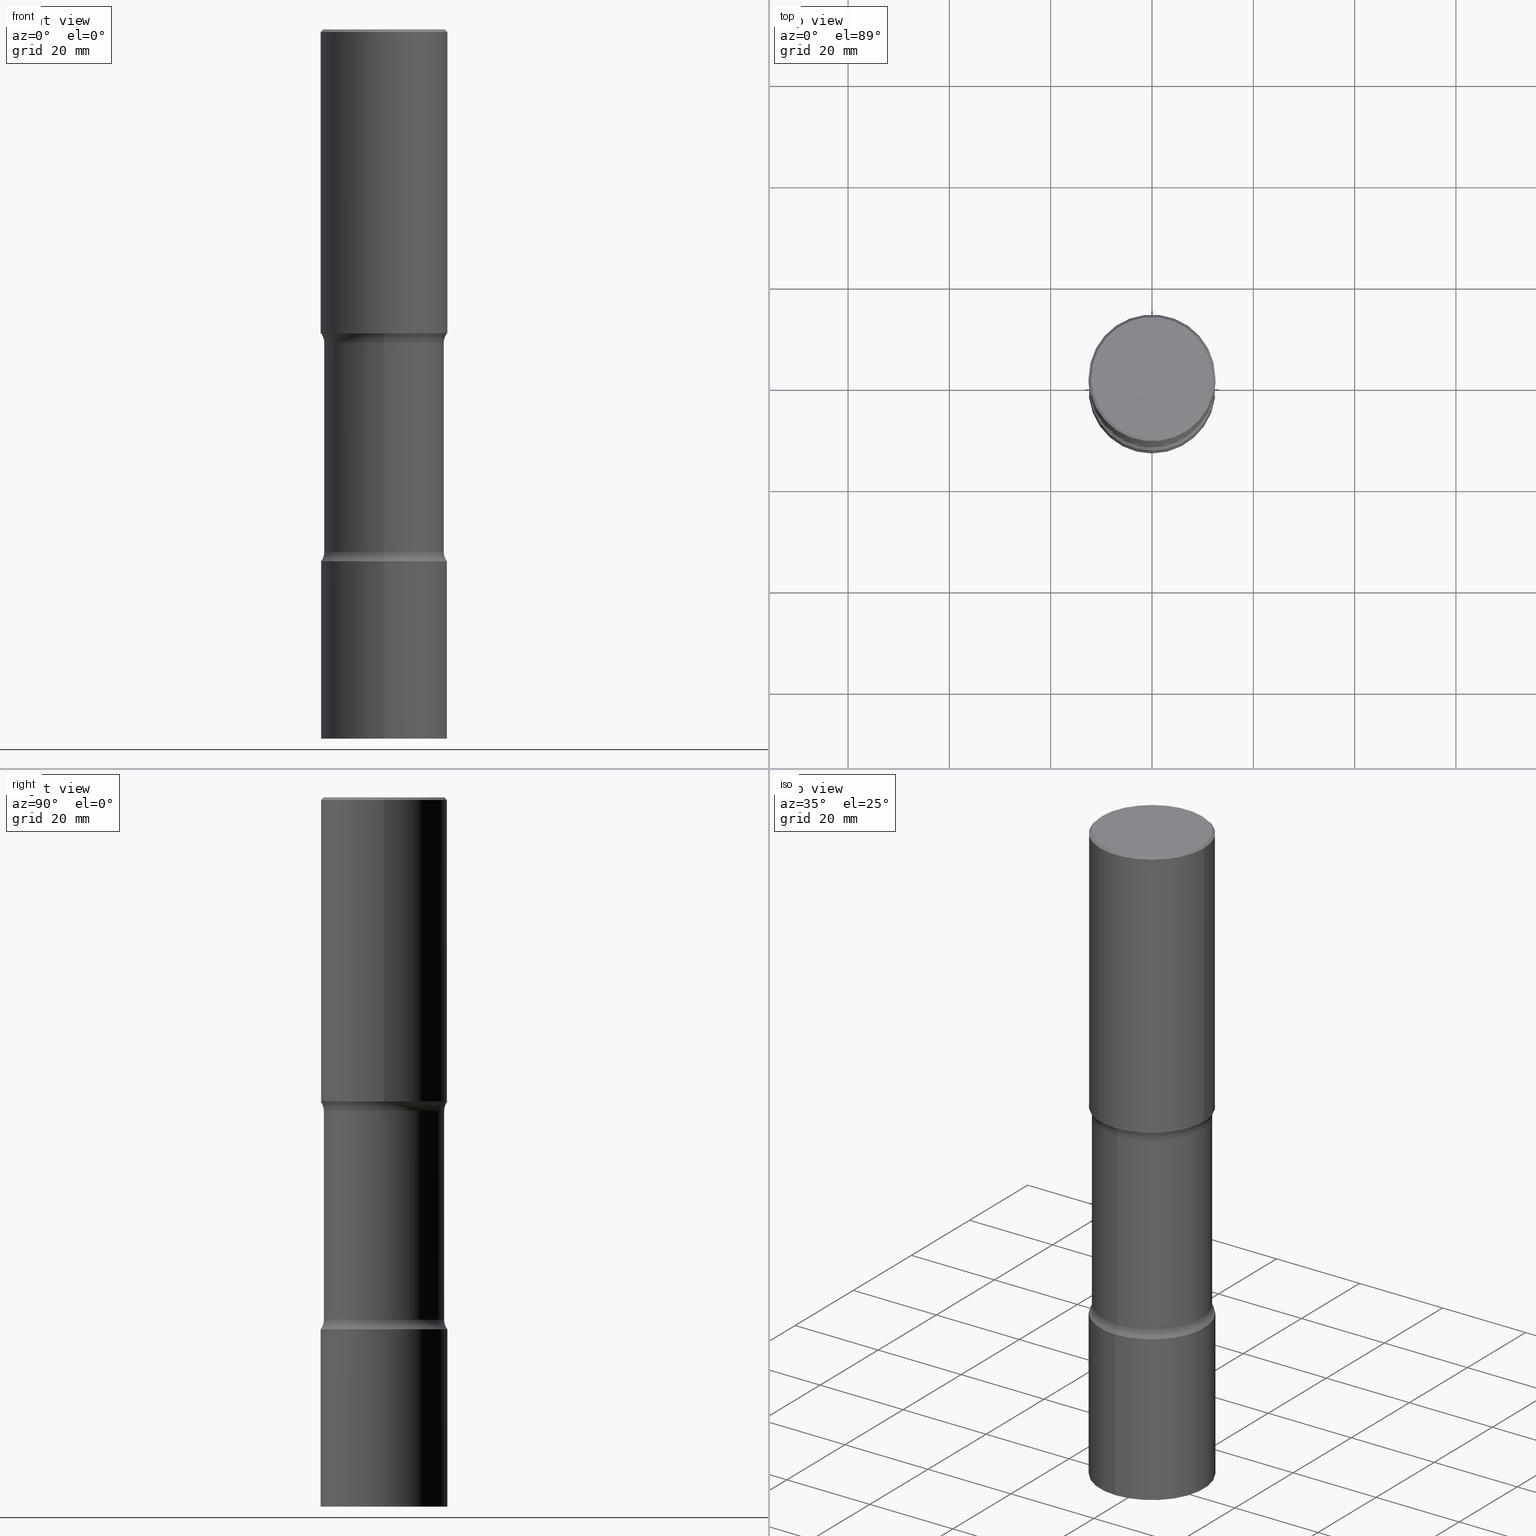
[diagram: canonical four-view strip — front | top / right | iso, engineering-drawing reading convention]
A machine part, canonical four-view strip (front | top / right | iso — engineering-drawing reading convention). The complete STEP part file that produces these views, byte-faithful:
ISO-10303-21;
HEADER;
FILE_DESCRIPTION (( 'STEP AP203' ),
    '1' );
FILE_NAME ('44654.STEP',
    '2024-03-11T13:41:08',
    ( '' ),
    ( '' ),
    'SwSTEP 2.0',
    'SolidWorks 2023',
    '' );
FILE_SCHEMA (( 'CONFIG_CONTROL_DESIGN' ));
ENDSEC;

DATA;
#1 = CONICAL_SURFACE ( 'NONE', #124, 0.4921499999999996988, 0.7853981633974460586 ) ;
#2 = AXIS2_PLACEMENT_3D ( 'NONE', #199, #476, #196 ) ;
#3 = ADVANCED_BREP_SHAPE_REPRESENTATION ( '44654', ( #409, #411, #244, #417 ), #441 ) ;
#4 = LINE ( 'NONE', #120, #350 ) ;
#5 = ADVANCED_FACE ( 'NONE', ( #487 ), #1, .T. ) ;
#6 = DIRECTION ( 'NONE',  ( 2.550468296811760761E-29, -3.341116092065950250E-15, -1.000000000000000000 ) ) ;
#7 = ORIENTED_EDGE ( 'NONE', *, *, #494, .T. ) ;
#8 = CARTESIAN_POINT ( 'NONE',  ( 5.768185847438264700E-29, -8.780985790233064906E-15, -2.436731050576252056 ) ) ;
#9 = EDGE_LOOP ( 'NONE', ( #130, #55 ) ) ;
#10 = CIRCLE ( 'NONE', #260, 0.4921499999999999209 ) ;
#11 = CC_DESIGN_APPROVAL ( #12, ( #466 ) ) ;
#12 = APPROVAL ( #183, 'UNSPECIFIED' ) ;
#13 = CARTESIAN_POINT ( 'NONE',  ( 1.010907895100811684E-28, -1.443308555850979562E-14, -4.133799999999999919 ) ) ;
#14 = ORIENTED_EDGE ( 'NONE', *, *, #32, .T. ) ;
#15 = EDGE_CURVE ( 'NONE', #432, #172, #110, .T. ) ;
#16 = FACE_OUTER_BOUND ( 'NONE', #57, .T. ) ;
#17 = ORIENTED_EDGE ( 'NONE', *, *, #208, .F. ) ;
#18 = DIRECTION ( 'NONE',  ( -2.438088387897960049E-29, 3.491481338843145188E-15, 1.000000000000000000 ) ) ;
#19 = ORIENTED_EDGE ( 'NONE', *, *, #352, .F. ) ;
#20 = DIRECTION ( 'NONE',  ( 6.982962677686265922E-15, 1.000000000000000000, -3.330506545156065468E-15 ) ) ;
#21 = CIRCLE ( 'NONE', #300, 0.1249999999999995559 ) ;
#22 = ORIENTED_EDGE ( 'NONE', *, *, #382, .T. ) ;
#23 = ORIENTED_EDGE ( 'NONE', *, *, #118, .F. ) ;
#24 = DIRECTION ( 'NONE',  ( -2.445706778904536167E-29, 3.491140548364399135E-15, 1.000000000000000000 ) ) ;
#25 = ORIENTED_EDGE ( 'NONE', *, *, #74, .T. ) ;
#26 = EDGE_CURVE ( 'NONE', #439, #359, #292, .T. ) ;
#27 = CARTESIAN_POINT ( 'NONE',  ( 1.011006268263557140E-28, -1.443167679882875537E-14, -4.133799999999999919 ) ) ;
#28 = DIRECTION ( 'NONE',  ( 1.000000000000000000, -6.982962677686265922E-15, 0.000000000000000000 ) ) ;
#29 = VECTOR ( 'NONE', #425, 39.37007874015748143 ) ;
#30 = AXIS2_PLACEMENT_3D ( 'NONE', #143, #323, #20 ) ;
#31 = ADVANCED_FACE ( 'NONE', ( #336 ), #474, .F. ) ;
#32 = EDGE_CURVE ( 'NONE', #132, #207, #21, .T. ) ;
#33 = COORDINATED_UNIVERSAL_TIME_OFFSET ( 5, 0, .BEHIND. ) ;
#34 = DIRECTION ( 'NONE',  ( 6.982962677686265133E-15, 1.000000000000000000, -3.341116092065950250E-15 ) ) ;
#35 = APPROVAL_DATE_TIME ( #457, #275 ) ;
#36 = FACE_OUTER_BOUND ( 'NONE', #288, .T. ) ;
#37 = ADVANCED_FACE ( 'NONE', ( #286 ), #282, .T. ) ;
#38 = PERSON_AND_ORGANIZATION_ROLE ( 'creator' ) ;
#39 = DIRECTION ( 'NONE',  ( 2.550468296811760761E-29, -3.341116092065950250E-15, -1.000000000000000000 ) ) ;
#40 = CIRCLE ( 'NONE', #177, 0.4921499999999999209 ) ;
#41 = AXIS2_PLACEMENT_3D ( 'NONE', #390, #274, #48 ) ;
#42 = AXIS2_PLACEMENT_3D ( 'NONE', #364, #18, #245 ) ;
#43 = APPLICATION_PROTOCOL_DEFINITION ( 'international standard', 'config_control_design', 1994, #264 ) ;
#44 = FACE_OUTER_BOUND ( 'NONE', #372, .T. ) ;
#45 = PLANE ( 'NONE',  #376 ) ;
#46 = AXIS2_PLACEMENT_3D ( 'NONE', #8, #203, #272 ) ;
#47 = AXIS2_PLACEMENT_3D ( 'NONE', #279, #242, #440 ) ;
#48 = DIRECTION ( 'NONE',  ( 1.000000000000000000, -6.982962677686265922E-15, 4.876006802227162976E-29 ) ) ;
#49 = VERTEX_POINT ( 'NONE', #137 ) ;
#50 = FACE_OUTER_BOUND ( 'NONE', #157, .T. ) ;
#51 = CARTESIAN_POINT ( 'NONE',  ( -3.131554243005659264E-46, 4.471029511141341874E-32, 1.280553747030123384E-17 ) ) ;
#52 = ORIENTED_EDGE ( 'NONE', *, *, #443, .T. ) ;
#53 = ORGANIZATION ( 'UNSPECIFIED', 'UNSPECIFIED', '' ) ;
#54 = DIRECTION ( 'NONE',  ( 2.550468296811760200E-29, -3.341116092065950250E-15, -1.000000000000000000 ) ) ;
#55 = ORIENTED_EDGE ( 'NONE', *, *, #315, .T. ) ;
#56 = DIRECTION ( 'NONE',  ( 6.982962677686265922E-15, 1.000000000000000000, -3.330506545156066652E-15 ) ) ;
#57 = EDGE_LOOP ( 'NONE', ( #139, #316, #101, #297 ) ) ;
#58 = ADVANCED_FACE ( 'NONE', ( #428 ), #499, .T. ) ;
#59 = DIRECTION ( 'NONE',  ( 2.438088387897960049E-29, -3.491481338843145188E-15, -1.000000000000000000 ) ) ;
#60 = EDGE_LOOP ( 'NONE', ( #447, #52 ) ) ;
#61 = CARTESIAN_POINT ( 'NONE',  ( 1.362460799564217853E-28, -1.903573477369563005E-14, -5.511800000000000033 ) ) ;
#62 = AXIS2_PLACEMENT_3D ( 'NONE', #116, #151, #343 ) ;
#63 = CIRCLE ( 'NONE', #103, 0.1249999999999999584 ) ;
#64 = VERTEX_POINT ( 'NONE', #504 ) ;
#65 = DIRECTION ( 'NONE',  ( -6.982962677686265922E-15, -1.000000000000000000, 4.440675393541422465E-15 ) ) ;
#66 = DIRECTION ( 'NONE',  ( 6.982962677686265133E-15, 1.000000000000000000, -2.337410048054982819E-15 ) ) ;
#67 = EDGE_CURVE ( 'NONE', #64, #481, #508, .T. ) ;
#68 = DIRECTION ( 'NONE',  ( 2.445468806185136597E-29, -3.491481338843145583E-15, -1.000000000000000000 ) ) ;
#69 = APPROVAL_ROLE ( '' ) ;
#70 = ORIENTED_EDGE ( 'NONE', *, *, #494, .F. ) ;
#71 = AXIS2_PLACEMENT_3D ( 'NONE', #246, #404, #211 ) ;
#72 = AXIS2_PLACEMENT_3D ( 'NONE', #349, #318, #201 ) ;
#73 = DIRECTION ( 'NONE',  ( -2.445706778904536167E-29, 3.491140548364399135E-15, 1.000000000000000000 ) ) ;
#74 = EDGE_CURVE ( 'NONE', #172, #432, #40, .T. ) ;
#75 = PERSON_AND_ORGANIZATION_ROLE ( 'design_owner' ) ;
#76 = CARTESIAN_POINT ( 'NONE',  ( 1.348024662396602390E-28, -1.924246847447489311E-14, -5.511800000000000033 ) ) ;
#77 = CALENDAR_DATE ( 2024, 11, 3 ) ;
#78 = ADVANCED_FACE ( 'NONE', ( #184 ), #384, .T. ) ;
#79 = CARTESIAN_POINT ( 'NONE',  ( 1.011006268263557140E-28, -1.443167679882875537E-14, -4.133799999999999919 ) ) ;
#80 = AXIS2_PLACEMENT_3D ( 'NONE', #270, #83, #500 ) ;
#81 = CIRCLE ( 'NONE', #302, 0.4675000000000004707 ) ;
#82 = COORDINATED_UNIVERSAL_TIME_OFFSET ( 5, 0, .BEHIND. ) ;
#83 = DIRECTION ( 'NONE',  ( 2.550468296811760761E-29, -3.341116092065950250E-15, -1.000000000000000000 ) ) ;
#84 = DIMENSIONAL_EXPONENTS ( 1.000000000000000000, 0.000000000000000000, 0.000000000000000000, 0.000000000000000000, 0.000000000000000000, 0.000000000000000000, 0.000000000000000000 ) ;
#85 = FACE_OUTER_BOUND ( 'NONE', #406, .T. ) ;
#86 = CARTESIAN_POINT ( 'NONE',  ( 9.919973601012768158E-29, -1.418265990638985854E-14, -4.059268949423747941 ) ) ;
#87 = EDGE_LOOP ( 'NONE', ( #361, #249, #22, #253 ) ) ;
#88 = AXIS2_PLACEMENT_3D ( 'NONE', #434, #126, #140 ) ;
#89 = CARTESIAN_POINT ( 'NONE',  ( 5.781742129626663018E-29, -8.761572422563614587E-15, -2.436731050576252500 ) ) ;
#90 = ORIENTED_EDGE ( 'NONE', *, *, #379, .T. ) ;
#91 = DIRECTION ( 'NONE',  ( -6.982962677686265922E-15, -1.000000000000000000, 3.491140548364399135E-15 ) ) ;
#92 = ORIENTED_EDGE ( 'NONE', *, *, #305, .F. ) ;
#93 = PLANE ( 'NONE',  #262 ) ;
#94 = ORIENTED_EDGE ( 'NONE', *, *, #167, .F. ) ;
#95 = VECTOR ( 'NONE', #429, 39.37007874015748143 ) ;
#96 = CIRCLE ( 'NONE', #47, 0.4921499999999999764 ) ;
#97 = CYLINDRICAL_SURFACE ( 'NONE', #2, 0.4921499999999999209 ) ;
#98 = EDGE_LOOP ( 'NONE', ( #169, #19 ) ) ;
#99 = EDGE_LOOP ( 'NONE', ( #127, #478, #204, #104 ) ) ;
#100 = DIRECTION ( 'NONE',  ( -0.7071067811865459074, 2.468850131082240100E-15, -0.7071067811865491270 ) ) ;
#101 = ORIENTED_EDGE ( 'NONE', *, *, #239, .F. ) ;
#102 = CIRCLE ( 'NONE', #41, 0.4721499999999996255 ) ;
#103 = AXIS2_PLACEMENT_3D ( 'NONE', #486, #287, #210 ) ;
#104 = ORIENTED_EDGE ( 'NONE', *, *, #67, .F. ) ;
#105 = LINE ( 'NONE', #444, #427 ) ;
#106 = EDGE_LOOP ( 'NONE', ( #23, #200, #121, #144 ) ) ;
#107 = CARTESIAN_POINT ( 'NONE',  ( 5.768185847438264700E-29, -8.780985790233064906E-15, -2.436731050576252056 ) ) ;
#108 = COORDINATED_UNIVERSAL_TIME_OFFSET ( 5, 0, .BEHIND. ) ;
#109 = CARTESIAN_POINT ( 'NONE',  ( 5.591653048003855297E-29, -8.512555530124713029E-15, -2.362199999999999189 ) ) ;
#110 = CIRCLE ( 'NONE', #492, 0.4921499999999999209 ) ;
#111 = CIRCLE ( 'NONE', #252, 0.4921499999999996988 ) ;
#112 = CALENDAR_DATE ( 2024, 11, 3 ) ;
#113 = DIRECTION ( 'NONE',  ( 6.982962677686265922E-15, 1.000000000000000000, -3.491140548364399135E-15 ) ) ;
#114 = PERSON_AND_ORGANIZATION_ROLE ( 'design_supplier' ) ;
#115 = CARTESIAN_POINT ( 'NONE',  ( 5.776686413970527511E-29, -8.247577218615276471E-15, -2.362199999999999189 ) ) ;
#116 = CARTESIAN_POINT ( 'NONE',  ( -4.064845063679575306E-15, -0.5925000000000090195, -2.436731050576250279 ) ) ;
#117 = CIRCLE ( 'NONE', #72, 0.4675000000000001932 ) ;
#118 = EDGE_CURVE ( 'NONE', #402, #207, #187, .T. ) ;
#119 = DIRECTION ( 'NONE',  ( 1.000000000000000000, -6.982962677686263555E-15, 0.000000000000000000 ) ) ;
#120 = CARTESIAN_POINT ( 'NONE',  ( 0.4921499999999998098, -3.436665081823294593E-15, 2.399810400207968762E-29 ) ) ;
#121 = ORIENTED_EDGE ( 'NONE', *, *, #67, .T. ) ;
#122 = CARTESIAN_POINT ( 'NONE',  ( 0.4921499999999996988, -3.446223716380120377E-15, -0.02000000000000013572 ) ) ;
#123 = VERTEX_POINT ( 'NONE', #462 ) ;
#124 = AXIS2_PLACEMENT_3D ( 'NONE', #333, #68, #290 ) ;
#125 = APPROVAL_PERSON_ORGANIZATION ( #380, #192, #463 ) ;
#126 = DIRECTION ( 'NONE',  ( -1.000000000000000000, 6.982962677686265922E-15, -4.883557194083112901E-29 ) ) ;
#127 = ORIENTED_EDGE ( 'NONE', *, *, #305, .T. ) ;
#128 = EDGE_CURVE ( 'NONE', #159, #439, #145, .T. ) ;
#129 = CARTESIAN_POINT ( 'NONE',  ( 1.362460799564217853E-28, -1.903573477369563005E-14, -5.511800000000000033 ) ) ;
#130 = ORIENTED_EDGE ( 'NONE', *, *, #231, .T. ) ;
#131 = CARTESIAN_POINT ( 'NONE',  ( 5.776686413970527511E-29, -8.247577218615276471E-15, -2.362199999999999189 ) ) ;
#132 = VERTEX_POINT ( 'NONE', #299 ) ;
#133 = VECTOR ( 'NONE', #465, 39.37007874015748143 ) ;
#134 = AXIS2_PLACEMENT_3D ( 'NONE', #175, #453, #496 ) ;
#135 = VERTEX_POINT ( 'NONE', #458 ) ;
#136 = FACE_OUTER_BOUND ( 'NONE', #489, .T. ) ;
#137 = CARTESIAN_POINT ( 'NONE',  ( -3.436665081823194408E-15, -0.4921500000000142983, -4.133799999999998143 ) ) ;
#138 = CARTESIAN_POINT ( 'NONE',  ( -0.4921499999999996988, 3.366835455046430506E-15, -0.02000000000000013572 ) ) ;
#139 = ORIENTED_EDGE ( 'NONE', *, *, #155, .T. ) ;
#140 = DIRECTION ( 'NONE',  ( -6.982962677686268288E-15, -1.000000000000000000, 0.000000000000000000 ) ) ;
#141 = CIRCLE ( 'NONE', #228, 0.4921499999999999209 ) ;
#142 = ORIENTED_EDGE ( 'NONE', *, *, #161, .T. ) ;
#143 = CARTESIAN_POINT ( 'NONE',  ( 5.591653048003855297E-29, -8.512555530124713029E-15, -2.362199999999999189 ) ) ;
#144 = ORIENTED_EDGE ( 'NONE', *, *, #247, .F. ) ;
#145 = LINE ( 'NONE', #153, #133 ) ;
#146 = LINE ( 'NONE', #149, #29 ) ;
#147 = AXIS2_PLACEMENT_3D ( 'NONE', #355, #360, #91 ) ;
#148 = PERSON_AND_ORGANIZATION ( #322, #53 ) ;
#149 = CARTESIAN_POINT ( 'NONE',  ( -3.436665081823295382E-15, -0.4921499999999999209, 1.718164820877538749E-15 ) ) ;
#150 = PERSON_AND_ORGANIZATION ( #322, #53 ) ;
#151 = DIRECTION ( 'NONE',  ( 1.000000000000000000, -6.860497997771530774E-15, 4.842640322805829987E-29 ) ) ;
#152 = EDGE_CURVE ( 'NONE', #123, #209, #205, .T. ) ;
#153 = CARTESIAN_POINT ( 'NONE',  ( -0.4921499999999998098, 3.496936074043331714E-15, -2.420853904668950949E-29 ) ) ;
#154 = DIRECTION ( 'NONE',  ( -2.445468806185136597E-29, 3.491481338843145583E-15, 1.000000000000000000 ) ) ;
#155 = EDGE_CURVE ( 'NONE', #454, #159, #276, .T. ) ;
#156 = DIRECTION ( 'NONE',  ( 6.982962677686265133E-15, 1.000000000000000000, -3.506115072082473243E-15 ) ) ;
#157 = EDGE_LOOP ( 'NONE', ( #329, #370 ) ) ;
#158 = DIRECTION ( 'NONE',  ( 2.550468296811760761E-29, -3.341116092065950250E-15, -1.000000000000000000 ) ) ;
#159 = VERTEX_POINT ( 'NONE', #468 ) ;
#160 = CLOSED_SHELL ( 'NONE', ( #293, #5, #37, #452, #479, #58 ) ) ;
#161 = EDGE_CURVE ( 'NONE', #402, #209, #450, .T. ) ;
#162 = LOCAL_TIME ( 9, 41, 8.000000000000000000, #82 ) ;
#163 = DIRECTION ( 'NONE',  ( 2.445706778904535887E-29, -3.491140548364399135E-15, -1.000000000000000000 ) ) ;
#164 = ORIENTED_EDGE ( 'NONE', *, *, #208, .T. ) ;
#165 = DIRECTION ( 'NONE',  ( 6.982962677686265922E-15, 1.000000000000000000, -3.491140548364399135E-15 ) ) ;
#166 = ORIENTED_EDGE ( 'NONE', *, *, #472, .F. ) ;
#167 = EDGE_CURVE ( 'NONE', #49, #354, #10, .T. ) ;
#168 =( NAMED_UNIT ( * ) SI_UNIT ( $, .STERADIAN. ) SOLID_ANGLE_UNIT ( ) );
#169 = ORIENTED_EDGE ( 'NONE', *, *, #155, .F. ) ;
#170 = AXIS2_PLACEMENT_3D ( 'NONE', #491, #374, #28 ) ;
#171 = CIRCLE ( 'NONE', #88, 0.1249999999999995559 ) ;
#172 = VERTEX_POINT ( 'NONE', #339 ) ;
#173 = DIRECTION ( 'NONE',  ( -1.000000000000000000, 6.982962677686265922E-15, -4.876176775795935793E-29 ) ) ;
#174 = EDGE_LOOP ( 'NONE', ( #295, #363, #437, #312 ) ) ;
#175 = CARTESIAN_POINT ( 'NONE',  ( 1.010907895100811684E-28, -1.443308555850979562E-14, -4.133799999999999919 ) ) ;
#176 = EDGE_LOOP ( 'NONE', ( #233, #238 ) ) ;
#177 = AXIS2_PLACEMENT_3D ( 'NONE', #76, #73, #461 ) ;
#178 = CC_DESIGN_APPROVAL ( #275, ( #368 ) ) ;
#179 = ORIENTED_EDGE ( 'NONE', *, *, #285, .T. ) ;
#180 = DATE_TIME_ROLE ( 'classification_date' ) ;
#181 = CARTESIAN_POINT ( 'NONE',  ( -3.207282813958056946E-15, -0.4675000000000194000, -5.511799999999999145 ) ) ;
#182 = CC_DESIGN_PERSON_AND_ORGANIZATION_ASSIGNMENT ( #148, #341, ( #466 ) ) ;
#183 = APPROVAL_STATUS ( 'not_yet_approved' ) ;
#184 = FACE_OUTER_BOUND ( 'NONE', #176, .T. ) ;
#185 = CC_DESIGN_PERSON_AND_ORGANIZATION_ASSIGNMENT ( #385, #38, ( #368 ) ) ;
#186 = PERSON_AND_ORGANIZATION ( #322, #53 ) ;
#187 = LINE ( 'NONE', #181, #348 ) ;
#188 = AXIS2_PLACEMENT_3D ( 'NONE', #337, #506, #113 ) ;
#189 = ADVANCED_FACE ( 'NONE', ( #44 ), #483, .F. ) ;
#190 = LOCAL_TIME ( 9, 41, 8.000000000000000000, #108 ) ;
#191 = DATE_TIME_ROLE ( 'creation_date' ) ;
#192 = APPROVAL ( #301, 'UNSPECIFIED' ) ;
#193 = ADVANCED_FACE ( 'NONE', ( #36 ), #250, .F. ) ;
#194 = CALENDAR_DATE ( 2024, 11, 3 ) ;
#195 = CARTESIAN_POINT ( 'NONE',  ( -3.376394089603203436E-15, -0.4921500000000086916, -2.362199999999997413 ) ) ;
#196 = DIRECTION ( 'NONE',  ( -6.982962677686265922E-15, -1.000000000000000000, 3.491140548364399135E-15 ) ) ;
#197 = CC_DESIGN_PERSON_AND_ORGANIZATION_ASSIGNMENT ( #421, #505, ( #367 ) ) ;
#198 = EDGE_CURVE ( 'NONE', #172, #49, #146, .T. ) ;
#199 = CARTESIAN_POINT ( 'NONE',  ( 0.000000000000000000, 0.000000000000000000, 0.000000000000000000 ) ) ;
#200 = ORIENTED_EDGE ( 'NONE', *, *, #328, .T. ) ;
#201 = DIRECTION ( 'NONE',  ( 6.982962677686265133E-15, 1.000000000000000000, -3.506115072082475215E-15 ) ) ;
#202 = ORIENTED_EDGE ( 'NONE', *, *, #161, .F. ) ;
#203 = DIRECTION ( 'NONE',  ( 2.550468296811760761E-29, -3.341116092065950250E-15, -1.000000000000000000 ) ) ;
#204 = ORIENTED_EDGE ( 'NONE', *, *, #285, .F. ) ;
#205 = CIRCLE ( 'NONE', #475, 0.4921500000000000874 ) ;
#206 = DIRECTION ( 'NONE',  ( 2.550468296811760761E-29, -3.341116092065950250E-15, -1.000000000000000000 ) ) ;
#207 = VERTEX_POINT ( 'NONE', #345 ) ;
#208 = EDGE_CURVE ( 'NONE', #319, #132, #314, .T. ) ;
#209 = VERTEX_POINT ( 'NONE', #195 ) ;
#210 = DIRECTION ( 'NONE',  ( -6.982962677686269077E-15, -1.000000000000000000, 0.000000000000000000 ) ) ;
#211 = DIRECTION ( 'NONE',  ( -1.000000000000000000, 6.982962677686265922E-15, 0.000000000000000000 ) ) ;
#212 = AXIS2_PLACEMENT_3D ( 'NONE', #413, #248, #56 ) ;
#213 = PLANE ( 'NONE',  #134 ) ;
#214 = ORIENTED_EDGE ( 'NONE', *, *, #431, .T. ) ;
#215 = PLANE ( 'NONE',  #42 ) ;
#216 = ORIENTED_EDGE ( 'NONE', *, *, #32, .F. ) ;
#217 = EDGE_CURVE ( 'NONE', #135, #359, #347, .T. ) ;
#218 = DIRECTION ( 'NONE',  ( -2.445706778904536167E-29, 3.491140548364399135E-15, 1.000000000000000000 ) ) ;
#219 = DIRECTION ( 'NONE',  ( -2.445706778904536167E-29, 3.491140548364399135E-15, 1.000000000000000000 ) ) ;
#220 = CLOSED_SHELL ( 'NONE', ( #356, #255, #324, #78 ) ) ;
#221 = AXIS2_PLACEMENT_3D ( 'NONE', #51, #471, #480 ) ;
#222 = ORIENTED_EDGE ( 'NONE', *, *, #15, .T. ) ;
#223 = CARTESIAN_POINT ( 'NONE',  ( 1.011006268263557140E-28, -1.443167679882875537E-14, -4.133799999999999919 ) ) ;
#224 = ADVANCED_FACE ( 'NONE', ( #85 ), #426, .F. ) ;
#225 = CARTESIAN_POINT ( 'NONE',  ( 3.264535051818467659E-15, 0.4674999999999812639, -5.511800000000000921 ) ) ;
#226 = PERSON_AND_ORGANIZATION ( #322, #53 ) ;
#227 = DIRECTION ( 'NONE',  ( 2.550468296811760761E-29, -3.341116092065950250E-15, -1.000000000000000000 ) ) ;
#228 = AXIS2_PLACEMENT_3D ( 'NONE', #27, #24, #446 ) ;
#229 = APPROVAL_DATE_TIME ( #344, #192 ) ;
#230 = DIRECTION ( 'NONE',  ( 6.982962677686265922E-15, 1.000000000000000000, -3.330506545156066652E-15 ) ) ;
#231 = EDGE_CURVE ( 'NONE', #445, #135, #102, .T. ) ;
#232 = DIRECTION ( 'NONE',  ( -2.445468806185136877E-29, 3.491481338843145188E-15, 1.000000000000000000 ) ) ;
#233 = ORIENTED_EDGE ( 'NONE', *, *, #74, .F. ) ;
#234 = CIRCLE ( 'NONE', #212, 0.4921499999999999209 ) ;
#235 = DIRECTION ( 'NONE',  ( 6.982962677686265133E-15, 1.000000000000000000, -3.506115072082473243E-15 ) ) ;
#236 = ORIENTED_EDGE ( 'NONE', *, *, #239, .T. ) ;
#237 = DIRECTION ( 'NONE',  ( -2.445468806185136597E-29, 3.491481338843145583E-15, 1.000000000000000000 ) ) ;
#238 = ORIENTED_EDGE ( 'NONE', *, *, #15, .F. ) ;
#239 = EDGE_CURVE ( 'NONE', #359, #439, #111, .T. ) ;
#240 = CARTESIAN_POINT ( 'NONE',  ( 0.000000000000000000, 0.000000000000000000, 0.000000000000000000 ) ) ;
#241 = LOCAL_TIME ( 9, 41, 8.000000000000000000, #503 ) ;
#242 = DIRECTION ( 'NONE',  ( -2.445468806185136597E-29, 3.491481338843145583E-15, 1.000000000000000000 ) ) ;
#243 = ORIENTED_EDGE ( 'NONE', *, *, #328, .F. ) ;
#244 = MANIFOLD_SOLID_BREP ( 'Body-Move/Copy2[4]', #375 ) ;
#245 = DIRECTION ( 'NONE',  ( 1.000000000000000000, -6.982962677686265922E-15, 4.876176775795935793E-29 ) ) ;
#246 = CARTESIAN_POINT ( 'NONE',  ( 4.890937612370306439E-31, -6.982962677686338448E-17, -0.02000000000000013572 ) ) ;
#247 = EDGE_CURVE ( 'NONE', #207, #481, #81, .T. ) ;
#248 = DIRECTION ( 'NONE',  ( 2.550468296811760761E-29, -3.341116092065950250E-15, -1.000000000000000000 ) ) ;
#249 = ORIENTED_EDGE ( 'NONE', *, *, #231, .F. ) ;
#250 = TOROIDAL_SURFACE ( 'NONE', #80, 0.5925000000000000266, 0.1249999999999995698 ) ;
#251 = AXIS2_PLACEMENT_3D ( 'NONE', #307, #39, #381 ) ;
#252 = AXIS2_PLACEMENT_3D ( 'NONE', #351, #154, #391 ) ;
#253 = ORIENTED_EDGE ( 'NONE', *, *, #26, .T. ) ;
#254 = DESIGN_CONTEXT ( 'detailed design', #393, 'design' ) ;
#255 = ADVANCED_FACE ( 'NONE', ( #438 ), #277, .T. ) ;
#256 = CARTESIAN_POINT ( 'NONE',  ( 3.297005828269567997E-15, 0.4721499999999996255, -1.642100145399639275E-15 ) ) ;
#257 = ORIENTED_EDGE ( 'NONE', *, *, #408, .F. ) ;
#258 = ORIENTED_EDGE ( 'NONE', *, *, #198, .T. ) ;
#259 = ADVANCED_FACE ( 'NONE', ( #50 ), #93, .F. ) ;
#260 = AXIS2_PLACEMENT_3D ( 'NONE', #223, #389, #268 ) ;
#261 = SHAPE_DEFINITION_REPRESENTATION ( #464, #3 ) ;
#262 = AXIS2_PLACEMENT_3D ( 'NONE', #131, #54, #436 ) ;
#263 = DIRECTION ( 'NONE',  ( 6.982962677686265922E-15, 1.000000000000000000, -3.330506545156065468E-15 ) ) ;
#264 = APPLICATION_CONTEXT ( 'configuration controlled 3d designs of mechanical parts and assemblies' ) ;
#265 = APPLICATION_PROTOCOL_DEFINITION ( 'international standard', 'config_control_design', 1994, #393 ) ;
#266 = DIRECTION ( 'NONE',  ( -2.445468806185136597E-29, 3.491481338843145583E-15, 1.000000000000000000 ) ) ;
#267 = DATE_AND_TIME ( #112, #451 ) ;
#268 = DIRECTION ( 'NONE',  ( -6.982962677686265922E-15, -1.000000000000000000, 3.330506545156066652E-15 ) ) ;
#269 = DIRECTION ( 'NONE',  ( 0.000000000000000000, 0.000000000000000000, 1.000000000000000000 ) ) ;
#270 = CARTESIAN_POINT ( 'NONE',  ( 9.926815591731686083E-29, -1.417286178625843607E-14, -4.059268949423747941 ) ) ;
#271 = CARTESIAN_POINT ( 'NONE',  ( 0.4921499999999996988, -3.446223716380120377E-15, -0.02000000000000013572 ) ) ;
#272 = DIRECTION ( 'NONE',  ( 6.982962677686265133E-15, 1.000000000000000000, -3.341116092065950250E-15 ) ) ;
#273 = EDGE_LOOP ( 'NONE', ( #202, #92, #281, #470 ) ) ;
#274 = DIRECTION ( 'NONE',  ( -2.445468806185136597E-29, 3.491481338843145583E-15, 1.000000000000000000 ) ) ;
#275 = APPROVAL ( #383, 'UNSPECIFIED' ) ;
#276 = CIRCLE ( 'NONE', #433, 0.4921499999999999764 ) ;
#277 = CYLINDRICAL_SURFACE ( 'NONE', #147, 0.4921499999999999209 ) ;
#278 = ORIENTED_EDGE ( 'NONE', *, *, #315, .F. ) ;
#279 = CARTESIAN_POINT ( 'NONE',  ( 5.776686413970527511E-29, -8.247577218615276471E-15, -2.362199999999999189 ) ) ;
#280 = FACE_OUTER_BOUND ( 'NONE', #99, .T. ) ;
#281 = ORIENTED_EDGE ( 'NONE', *, *, #472, .T. ) ;
#282 = CONICAL_SURFACE ( 'NONE', #71, 0.4921499999999996988, 0.7853981633974460586 ) ;
#283 = CIRCLE ( 'NONE', #392, 0.4675000000000004707 ) ;
#284 = CC_DESIGN_SECURITY_CLASSIFICATION ( #466, ( #367 ) ) ;
#285 = EDGE_CURVE ( 'NONE', #481, #207, #283, .T. ) ;
#286 = FACE_OUTER_BOUND ( 'NONE', #87, .T. ) ;
#287 = DIRECTION ( 'NONE',  ( -1.000000000000000000, 6.982962677686265922E-15, -4.883557194083112901E-29 ) ) ;
#288 = EDGE_LOOP ( 'NONE', ( #70, #14, #400, #365 ) ) ;
#289 = LENGTH_MEASURE_WITH_UNIT ( LENGTH_MEASURE( 0.02539999999999999897 ), #488 );
#290 = DIRECTION ( 'NONE',  ( -1.000000000000000000, 6.982962677686265922E-15, 0.000000000000000000 ) ) ;
#291 = CC_DESIGN_PERSON_AND_ORGANIZATION_ASSIGNMENT ( #226, #75, ( #424 ) ) ;
#292 = CIRCLE ( 'NONE', #170, 0.4921499999999996988 ) ;
#293 = ADVANCED_FACE ( 'NONE', ( #16 ), #311, .T. ) ;
#294 = CARTESIAN_POINT ( 'NONE',  ( 3.496936074043449648E-15, 0.4921499999999806585, -5.511800000000001809 ) ) ;
#295 = ORIENTED_EDGE ( 'NONE', *, *, #128, .F. ) ;
#296 = CC_DESIGN_DATE_AND_TIME_ASSIGNMENT ( #415, #180, ( #466 ) ) ;
#297 = ORIENTED_EDGE ( 'NONE', *, *, #362, .F. ) ;
#298 = DIRECTION ( 'NONE',  ( 1.000000000000000000, 0.000000000000000000, 0.000000000000000000 ) ) ;
#299 = CARTESIAN_POINT ( 'NONE',  ( -3.376394089603157288E-15, -0.4921500000000142983, -4.133799999999998143 ) ) ;
#300 = AXIS2_PLACEMENT_3D ( 'NONE', #456, #325, #485 ) ;
#301 = APPROVAL_STATUS ( 'not_yet_approved' ) ;
#302 = AXIS2_PLACEMENT_3D ( 'NONE', #353, #397, #235 ) ;
#303 = DIRECTION ( 'NONE',  ( 1.000000000000000000, -6.982962677686265922E-15, 4.876176775795935793E-29 ) ) ;
#304 = DIRECTION ( 'NONE',  ( 2.550468296811760761E-29, -3.341116092065950250E-15, -1.000000000000000000 ) ) ;
#305 = EDGE_CURVE ( 'NONE', #64, #402, #484, .T. ) ;
#306 = COORDINATED_UNIVERSAL_TIME_OFFSET ( 5, 0, .BEHIND. ) ;
#307 = CARTESIAN_POINT ( 'NONE',  ( 9.926815591731686083E-29, -1.417286178625843607E-14, -4.059268949423747941 ) ) ;
#308 = DIRECTION ( 'NONE',  ( 2.550468296811760761E-29, -3.341116092065950250E-15, -1.000000000000000000 ) ) ;
#309 = CIRCLE ( 'NONE', #221, 0.4721499999999996255 ) ;
#310 = DIRECTION ( 'NONE',  ( 6.982962677686265133E-15, 1.000000000000000000, -3.506115072082475215E-15 ) ) ;
#311 = CYLINDRICAL_SURFACE ( 'NONE', #435, 0.4921499999999998098 ) ;
#312 = ORIENTED_EDGE ( 'NONE', *, *, #26, .F. ) ;
#313 = FACE_OUTER_BOUND ( 'NONE', #321, .T. ) ;
#314 = CIRCLE ( 'NONE', #357, 0.4921499999999999209 ) ;
#315 = EDGE_CURVE ( 'NONE', #135, #445, #309, .T. ) ;
#316 = ORIENTED_EDGE ( 'NONE', *, *, #128, .T. ) ;
#317 = APPROVAL_PERSON_ORGANIZATION ( #338, #12, #69 ) ;
#318 = DIRECTION ( 'NONE',  ( 2.550468296811760761E-29, -3.341116092065950250E-15, -1.000000000000000000 ) ) ;
#319 = VERTEX_POINT ( 'NONE', #469 ) ;
#320 = DIRECTION ( 'NONE',  ( 6.982962677686265133E-15, 1.000000000000000000, -2.337410048054982819E-15 ) ) ;
#321 = EDGE_LOOP ( 'NONE', ( #25, #331, #94, #473 ) ) ;
#322 = PERSON ( 'UNSPECIFIED', 'UNSPECIFIED', 'UNSPECIFIED', ('UNSPECIFIED'), ('UNSPECIFIED'), ('UNSPECIFIED') ) ;
#323 = DIRECTION ( 'NONE',  ( 2.550468296811760761E-29, -3.341116092065950250E-15, -1.000000000000000000 ) ) ;
#324 = ADVANCED_FACE ( 'NONE', ( #394 ), #45, .F. ) ;
#325 = DIRECTION ( 'NONE',  ( 1.000000000000000000, -6.860497997771530774E-15, 4.842640322805829987E-29 ) ) ;
#326 = AXIS2_PLACEMENT_3D ( 'NONE', #256, #59, #173 ) ;
#327 = CARTESIAN_POINT ( 'NONE',  ( -3.291838451780669043E-15, -0.4675000000000089639, -2.436731050576250723 ) ) ;
#328 = EDGE_CURVE ( 'NONE', #402, #64, #117, .T. ) ;
#329 = ORIENTED_EDGE ( 'NONE', *, *, #152, .F. ) ;
#330 = CARTESIAN_POINT ( 'NONE',  ( 0.4921499999999999764, -1.168424230043857067E-14, -2.362199999999999189 ) ) ;
#331 = ORIENTED_EDGE ( 'NONE', *, *, #408, .T. ) ;
#332 = CARTESIAN_POINT ( 'NONE',  ( -0.4721499999999996255, 3.331920641657999252E-15, 1.280553747027805488E-17 ) ) ;
#333 = CARTESIAN_POINT ( 'NONE',  ( 4.890937612370306439E-31, -6.982962677686338448E-17, -0.02000000000000013572 ) ) ;
#334 = AXIS2_PLACEMENT_3D ( 'NONE', #89, #206, #310 ) ;
#335 =( CONVERSION_BASED_UNIT ( 'INCH', #289 ) LENGTH_UNIT ( ) NAMED_UNIT ( #84 ) );
#336 = FACE_OUTER_BOUND ( 'NONE', #273, .T. ) ;
#337 = CARTESIAN_POINT ( 'NONE',  ( 1.347893496593123646E-28, -1.924434684343564878E-14, -5.511800000000000033 ) ) ;
#338 = PERSON_AND_ORGANIZATION ( #322, #53 ) ;
#339 = CARTESIAN_POINT ( 'NONE',  ( -3.436665081823160487E-15, -0.4921500000000191832, -5.511799999999997368 ) ) ;
#340 = ADVANCED_FACE ( 'NONE', ( #280 ), #477, .T. ) ;
#341 = PERSON_AND_ORGANIZATION_ROLE ( 'classification_officer' ) ;
#342 = AXIS2_PLACEMENT_3D ( 'NONE', #61, #369, #66 ) ;
#343 = DIRECTION ( 'NONE',  ( 6.860497997771532351E-15, 1.000000000000000000, 0.000000000000000000 ) ) ;
#344 = DATE_AND_TIME ( #460, #502 ) ;
#345 = CARTESIAN_POINT ( 'NONE',  ( -3.291838451780625655E-15, -0.4675000000000146816, -4.059268949423747053 ) ) ;
#346 = CARTESIAN_POINT ( 'NONE',  ( 0.000000000000000000, 0.000000000000000000, 0.000000000000000000 ) ) ;
#347 = LINE ( 'NONE', #271, #95 ) ;
#348 = VECTOR ( 'NONE', #304, 39.37007874015748143 ) ;
#349 = CARTESIAN_POINT ( 'NONE',  ( 5.781742129626663018E-29, -8.761572422563614587E-15, -2.436731050576252500 ) ) ;
#350 = VECTOR ( 'NONE', #232, 39.37007874015748143 ) ;
#351 = CARTESIAN_POINT ( 'NONE',  ( 4.890937612370306439E-31, -6.982962677686338448E-17, -0.02000000000000013572 ) ) ;
#352 = EDGE_CURVE ( 'NONE', #159, #454, #96, .T. ) ;
#353 = CARTESIAN_POINT ( 'NONE',  ( 9.919973601012768158E-29, -1.418265990638985854E-14, -4.059268949423747941 ) ) ;
#354 = VERTEX_POINT ( 'NONE', #430 ) ;
#355 = CARTESIAN_POINT ( 'NONE',  ( 0.000000000000000000, 0.000000000000000000, 0.000000000000000000 ) ) ;
#356 = ADVANCED_FACE ( 'NONE', ( #313 ), #97, .T. ) ;
#357 = AXIS2_PLACEMENT_3D ( 'NONE', #79, #227, #230 ) ;
#358 = CIRCLE ( 'NONE', #30, 0.4921500000000000874 ) ;
#359 = VERTEX_POINT ( 'NONE', #122 ) ;
#360 = DIRECTION ( 'NONE',  ( -2.445706778904536167E-29, 3.491140548364399135E-15, 1.000000000000000000 ) ) ;
#361 = ORIENTED_EDGE ( 'NONE', *, *, #217, .F. ) ;
#362 = EDGE_CURVE ( 'NONE', #454, #359, #4, .T. ) ;
#363 = ORIENTED_EDGE ( 'NONE', *, *, #352, .T. ) ;
#364 = CARTESIAN_POINT ( 'NONE',  ( 5.776686413970527511E-29, -8.247577218615276471E-15, -2.362199999999999189 ) ) ;
#365 = ORIENTED_EDGE ( 'NONE', *, *, #379, .F. ) ;
#366 = VECTOR ( 'NONE', #387, 39.37007874015748143 ) ;
#367 = PRODUCT_DEFINITION_FORMATION_WITH_SPECIFIED_SOURCE ( 'ANY', '', #424, .NOT_KNOWN. ) ;
#368 = PRODUCT_DEFINITION ( 'UNKNOWN', '', #367, #254 ) ;
#369 = DIRECTION ( 'NONE',  ( 2.550468296811760761E-29, -3.341116092065950250E-15, -1.000000000000000000 ) ) ;
#370 = ORIENTED_EDGE ( 'NONE', *, *, #431, .F. ) ;
#371 = CARTESIAN_POINT ( 'NONE',  ( -0.4921499999999996988, 3.366835455046430506E-15, -0.02000000000000013572 ) ) ;
#372 = EDGE_LOOP ( 'NONE', ( #216, #17, #90, #179 ) ) ;
#373 = FACE_OUTER_BOUND ( 'NONE', #9, .T. ) ;
#374 = DIRECTION ( 'NONE',  ( -2.445468806185136597E-29, 3.491481338843145583E-15, 1.000000000000000000 ) ) ;
#375 = CLOSED_SHELL ( 'NONE', ( #340, #193, #224, #31, #259, #386, #189, #495 ) ) ;
#376 = AXIS2_PLACEMENT_3D ( 'NONE', #13, #163, #165 ) ;
#377 = DIRECTION ( 'NONE',  ( 2.550468296811760761E-29, -3.341116092065950250E-15, -1.000000000000000000 ) ) ;
#378 = UNCERTAINTY_MEASURE_WITH_UNIT (LENGTH_MEASURE( 1.000000000000000082E-05 ), #335, 'distance_accuracy_value', 'NONE');
#379 = EDGE_CURVE ( 'NONE', #319, #481, #171, .T. ) ;
#380 = PERSON_AND_ORGANIZATION ( #322, #53 ) ;
#381 = DIRECTION ( 'NONE',  ( 6.982962677686266711E-15, 1.000000000000000000, -3.341116092065949856E-15 ) ) ;
#382 = EDGE_CURVE ( 'NONE', #445, #439, #403, .T. ) ;
#383 = APPROVAL_STATUS ( 'not_yet_approved' ) ;
#384 = PLANE ( 'NONE',  #188 ) ;
#385 = PERSON_AND_ORGANIZATION ( #322, #53 ) ;
#386 = ADVANCED_FACE ( 'NONE', ( #136 ), #213, .F. ) ;
#387 = DIRECTION ( 'NONE',  ( 2.550468296811760761E-29, -3.341116092065950250E-15, -1.000000000000000000 ) ) ;
#388 = SECURITY_CLASSIFICATION_LEVEL ( 'unclassified' ) ;
#389 = DIRECTION ( 'NONE',  ( -2.445706778904536167E-29, 3.491140548364399135E-15, 1.000000000000000000 ) ) ;
#390 = CARTESIAN_POINT ( 'NONE',  ( -3.131554243005659264E-46, 4.471029511141341874E-32, 1.280553747030123384E-17 ) ) ;
#391 = DIRECTION ( 'NONE',  ( 1.000000000000000000, -6.982962677686265922E-15, 0.000000000000000000 ) ) ;
#392 = AXIS2_PLACEMENT_3D ( 'NONE', #86, #6, #156 ) ;
#393 = APPLICATION_CONTEXT ( 'configuration controlled 3d designs of mechanical parts and assemblies' ) ;
#394 = FACE_OUTER_BOUND ( 'NONE', #60, .T. ) ;
#395 = DIRECTION ( 'NONE',  ( 1.000000000000000000, -6.982962677686265922E-15, 4.876176775795935793E-29 ) ) ;
#396 = EDGE_LOOP ( 'NONE', ( #278, #412, #236, #414 ) ) ;
#397 = DIRECTION ( 'NONE',  ( 2.550468296811760761E-29, -3.341116092065950250E-15, -1.000000000000000000 ) ) ;
#398 = AXIS2_PLACEMENT_3D ( 'NONE', #422, #420, #303 ) ;
#399 = VECTOR ( 'NONE', #100, 39.37007874015748143 ) ;
#400 = ORIENTED_EDGE ( 'NONE', *, *, #247, .T. ) ;
#401 = CC_DESIGN_PERSON_AND_ORGANIZATION_ASSIGNMENT ( #150, #114, ( #367 ) ) ;
#402 = VERTEX_POINT ( 'NONE', #327 ) ;
#403 = LINE ( 'NONE', #138, #399 ) ;
#404 = DIRECTION ( 'NONE',  ( 2.445468806185136597E-29, -3.491481338843145583E-15, -1.000000000000000000 ) ) ;
#405 = FACE_OUTER_BOUND ( 'NONE', #98, .T. ) ;
#406 = EDGE_LOOP ( 'NONE', ( #243, #142, #214, #166 ) ) ;
#407 = CC_DESIGN_APPROVAL ( #192, ( #367 ) ) ;
#408 = EDGE_CURVE ( 'NONE', #432, #354, #105, .T. ) ;
#409 = MANIFOLD_SOLID_BREP ( 'Body-Move/Copy2[1]', #220 ) ;
#410 =( NAMED_UNIT ( * ) PLANE_ANGLE_UNIT ( ) SI_UNIT ( $, .RADIAN. ) );
#411 = MANIFOLD_SOLID_BREP ( 'Body-Move/Copy2[2]', #160 ) ;
#412 = ORIENTED_EDGE ( 'NONE', *, *, #217, .T. ) ;
#413 = CARTESIAN_POINT ( 'NONE',  ( 1.011006268263557140E-28, -1.443167679882875537E-14, -4.133799999999999919 ) ) ;
#414 = ORIENTED_EDGE ( 'NONE', *, *, #382, .F. ) ;
#415 = DATE_AND_TIME ( #507, #190 ) ;
#416 = ORIENTED_EDGE ( 'NONE', *, *, #443, .F. ) ;
#417 = AXIS2_PLACEMENT_3D ( 'NONE', #346, #269, #298 ) ;
#418 = DATE_AND_TIME ( #77, #162 ) ;
#419 = PRODUCT_RELATED_PRODUCT_CATEGORY ( 'detail', '', ( #424 ) ) ;
#420 = DIRECTION ( 'NONE',  ( -2.445468806185136597E-29, 3.491481338843145583E-15, 1.000000000000000000 ) ) ;
#421 = PERSON_AND_ORGANIZATION ( #322, #53 ) ;
#422 = CARTESIAN_POINT ( 'NONE',  ( 0.000000000000000000, 0.000000000000000000, 0.000000000000000000 ) ) ;
#423 = APPROVAL_DATE_TIME ( #267, #12 ) ;
#424 = PRODUCT ( '44654', '44654', '', ( #467 ) ) ;
#425 = DIRECTION ( 'NONE',  ( -2.445706778904536167E-29, 3.491140548364399135E-15, 1.000000000000000000 ) ) ;
#426 = TOROIDAL_SURFACE ( 'NONE', #46, 0.5925000000000001377, 0.1250000000000000000 ) ;
#427 = VECTOR ( 'NONE', #218, 39.37007874015748143 ) ;
#428 = FACE_OUTER_BOUND ( 'NONE', #174, .T. ) ;
#429 = DIRECTION ( 'NONE',  ( 0.7071067811865459074, -7.319954787623249734E-15, -0.7071067811865491270 ) ) ;
#430 = CARTESIAN_POINT ( 'NONE',  ( 3.496936074043466609E-15, 0.4921499999999854325, -4.133800000000001695 ) ) ;
#431 = EDGE_CURVE ( 'NONE', #209, #123, #358, .T. ) ;
#432 = VERTEX_POINT ( 'NONE', #294 ) ;
#433 = AXIS2_PLACEMENT_3D ( 'NONE', #115, #266, #119 ) ;
#434 = CARTESIAN_POINT ( 'NONE',  ( 4.137405386529212738E-15, 0.5924999999999858158, -4.059268949423749717 ) ) ;
#435 = AXIS2_PLACEMENT_3D ( 'NONE', #240, #237, #395 ) ;
#436 = DIRECTION ( 'NONE',  ( 6.982962677686265922E-15, 1.000000000000000000, -3.341116092065950250E-15 ) ) ;
#437 = ORIENTED_EDGE ( 'NONE', *, *, #362, .T. ) ;
#438 = FACE_OUTER_BOUND ( 'NONE', #442, .T. ) ;
#439 = VERTEX_POINT ( 'NONE', #371 ) ;
#440 = DIRECTION ( 'NONE',  ( 1.000000000000000000, -6.982962677686263555E-15, 0.000000000000000000 ) ) ;
#441 =( GEOMETRIC_REPRESENTATION_CONTEXT ( 3 ) GLOBAL_UNCERTAINTY_ASSIGNED_CONTEXT ( ( #378 ) ) GLOBAL_UNIT_ASSIGNED_CONTEXT ( ( #335, #410, #168 ) ) REPRESENTATION_CONTEXT ( 'NONE', 'WORKASPACE' ) );
#442 = EDGE_LOOP ( 'NONE', ( #257, #222, #258, #416 ) ) ;
#443 = EDGE_CURVE ( 'NONE', #354, #49, #141, .T. ) ;
#444 = CARTESIAN_POINT ( 'NONE',  ( 3.496936074043331714E-15, 0.4921499999999999209, -1.718164820877538749E-15 ) ) ;
#445 = VERTEX_POINT ( 'NONE', #332 ) ;
#446 = DIRECTION ( 'NONE',  ( -6.982962677686265922E-15, -1.000000000000000000, 3.330506545156066652E-15 ) ) ;
#447 = ORIENTED_EDGE ( 'NONE', *, *, #167, .T. ) ;
#448 = CARTESIAN_POINT ( 'NONE',  ( 3.264535051818431371E-15, 0.4674999999999862599, -4.059268949423749717 ) ) ;
#449 = CARTESIAN_POINT ( 'NONE',  ( 1.348024662396602390E-28, -1.924246847447489311E-14, -5.511800000000000033 ) ) ;
#450 = CIRCLE ( 'NONE', #62, 0.1249999999999999584 ) ;
#451 = LOCAL_TIME ( 9, 41, 8.000000000000000000, #306 ) ;
#452 = ADVANCED_FACE ( 'NONE', ( #373 ), #490, .F. ) ;
#453 = DIRECTION ( 'NONE',  ( -2.550468296811760200E-29, 3.341116092065950250E-15, 1.000000000000000000 ) ) ;
#454 = VERTEX_POINT ( 'NONE', #330 ) ;
#455 = FACE_OUTER_BOUND ( 'NONE', #106, .T. ) ;
#456 = CARTESIAN_POINT ( 'NONE',  ( -4.064845063679532707E-15, -0.5925000000000142375, -4.059268949423745276 ) ) ;
#457 = DATE_AND_TIME ( #194, #241 ) ;
#458 = CARTESIAN_POINT ( 'NONE',  ( 0.4721499999999996255, -3.342703923013973396E-15, 1.280553747032445131E-17 ) ) ;
#459 = AXIS2_PLACEMENT_3D ( 'NONE', #129, #158, #320 ) ;
#460 = CALENDAR_DATE ( 2024, 11, 3 ) ;
#461 = DIRECTION ( 'NONE',  ( -6.982962677686265922E-15, -1.000000000000000000, 4.440675393541422465E-15 ) ) ;
#462 = CARTESIAN_POINT ( 'NONE',  ( 3.436665081823352969E-15, 0.4921499999999915942, -2.362200000000000966 ) ) ;
#463 = APPROVAL_ROLE ( '' ) ;
#464 = PRODUCT_DEFINITION_SHAPE ( 'NONE', 'NONE',  #368 ) ;
#465 = DIRECTION ( 'NONE',  ( -2.445468806185136877E-29, 3.491481338843145188E-15, 1.000000000000000000 ) ) ;
#466 = SECURITY_CLASSIFICATION ( '', '', #388 ) ;
#467 = MECHANICAL_CONTEXT ( 'NONE', #264, 'mechanical' ) ;
#468 = CARTESIAN_POINT ( 'NONE',  ( -0.4921499999999999764, -6.617673486527353114E-16, -2.362199999999999189 ) ) ;
#469 = CARTESIAN_POINT ( 'NONE',  ( 3.436665081823396751E-15, 0.4921499999999854880, -4.133800000000001695 ) ) ;
#470 = ORIENTED_EDGE ( 'NONE', *, *, #152, .T. ) ;
#471 = DIRECTION ( 'NONE',  ( -2.445468806185136597E-29, 3.491481338843145583E-15, 1.000000000000000000 ) ) ;
#472 = EDGE_CURVE ( 'NONE', #64, #123, #63, .T. ) ;
#473 = ORIENTED_EDGE ( 'NONE', *, *, #198, .F. ) ;
#474 = TOROIDAL_SURFACE ( 'NONE', #501, 0.5925000000000001377, 0.1250000000000000000 ) ;
#475 = AXIS2_PLACEMENT_3D ( 'NONE', #109, #308, #263 ) ;
#476 = DIRECTION ( 'NONE',  ( -2.445706778904536167E-29, 3.491140548364399135E-15, 1.000000000000000000 ) ) ;
#477 = CYLINDRICAL_SURFACE ( 'NONE', #459, 0.4675000000000003597 ) ;
#478 = ORIENTED_EDGE ( 'NONE', *, *, #118, .T. ) ;
#479 = ADVANCED_FACE ( 'NONE', ( #405 ), #215, .F. ) ;
#480 = DIRECTION ( 'NONE',  ( 1.000000000000000000, -6.982962677686265922E-15, 4.876006802227162976E-29 ) ) ;
#481 = VERTEX_POINT ( 'NONE', #448 ) ;
#482 = CYLINDRICAL_SURFACE ( 'NONE', #342, 0.4675000000000003597 ) ;
#483 = TOROIDAL_SURFACE ( 'NONE', #251, 0.5925000000000000266, 0.1249999999999995698 ) ;
#484 = CIRCLE ( 'NONE', #334, 0.4675000000000001932 ) ;
#485 = DIRECTION ( 'NONE',  ( 6.860497997771530774E-15, 1.000000000000000000, 0.000000000000000000 ) ) ;
#486 = CARTESIAN_POINT ( 'NONE',  ( 4.137405386529171717E-15, 0.5924999999999913669, -2.436731050576254276 ) ) ;
#487 = FACE_OUTER_BOUND ( 'NONE', #396, .T. ) ;
#488 =( LENGTH_UNIT ( ) NAMED_UNIT ( * ) SI_UNIT ( $, .METRE. ) );
#489 = EDGE_LOOP ( 'NONE', ( #164, #7 ) ) ;
#490 = PLANE ( 'NONE',  #326 ) ;
#491 = CARTESIAN_POINT ( 'NONE',  ( 4.890937612370306439E-31, -6.982962677686338448E-17, -0.02000000000000013572 ) ) ;
#492 = AXIS2_PLACEMENT_3D ( 'NONE', #449, #219, #65 ) ;
#493 = APPROVAL_PERSON_ORGANIZATION ( #186, #275, #498 ) ;
#494 = EDGE_CURVE ( 'NONE', #132, #319, #234, .T. ) ;
#495 = ADVANCED_FACE ( 'NONE', ( #455 ), #482, .T. ) ;
#496 = DIRECTION ( 'NONE',  ( -6.982962677686265922E-15, -1.000000000000000000, 3.341116092065950250E-15 ) ) ;
#497 = CC_DESIGN_DATE_AND_TIME_ASSIGNMENT ( #418, #191, ( #368 ) ) ;
#498 = APPROVAL_ROLE ( '' ) ;
#499 = CYLINDRICAL_SURFACE ( 'NONE', #398, 0.4921499999999998098 ) ;
#500 = DIRECTION ( 'NONE',  ( 6.982962677686266711E-15, 1.000000000000000000, -3.341116092065949856E-15 ) ) ;
#501 = AXIS2_PLACEMENT_3D ( 'NONE', #107, #377, #34 ) ;
#502 = LOCAL_TIME ( 9, 41, 8.000000000000000000, #33 ) ;
#503 = COORDINATED_UNIVERSAL_TIME_OFFSET ( 5, 0, .BEHIND. ) ;
#504 = CARTESIAN_POINT ( 'NONE',  ( 3.264535051818388378E-15, 0.4674999999999914779, -2.436731050576254276 ) ) ;
#505 = PERSON_AND_ORGANIZATION_ROLE ( 'creator' ) ;
#506 = DIRECTION ( 'NONE',  ( 2.445706778904535887E-29, -3.491140548364399135E-15, -1.000000000000000000 ) ) ;
#507 = CALENDAR_DATE ( 2024, 11, 3 ) ;
#508 = LINE ( 'NONE', #225, #366 ) ;
ENDSEC;
END-ISO-10303-21;
